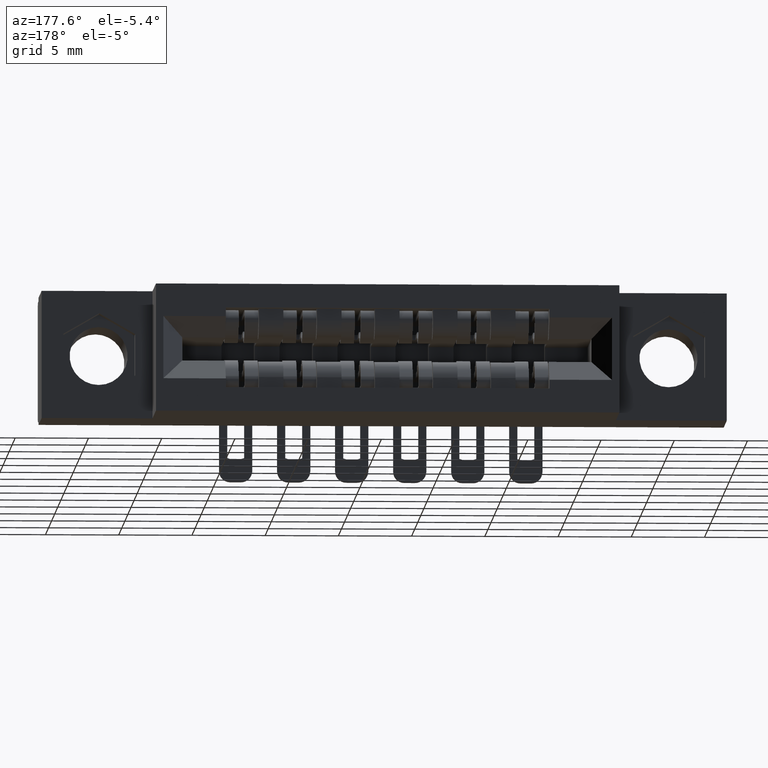
[diagram: clean part render]
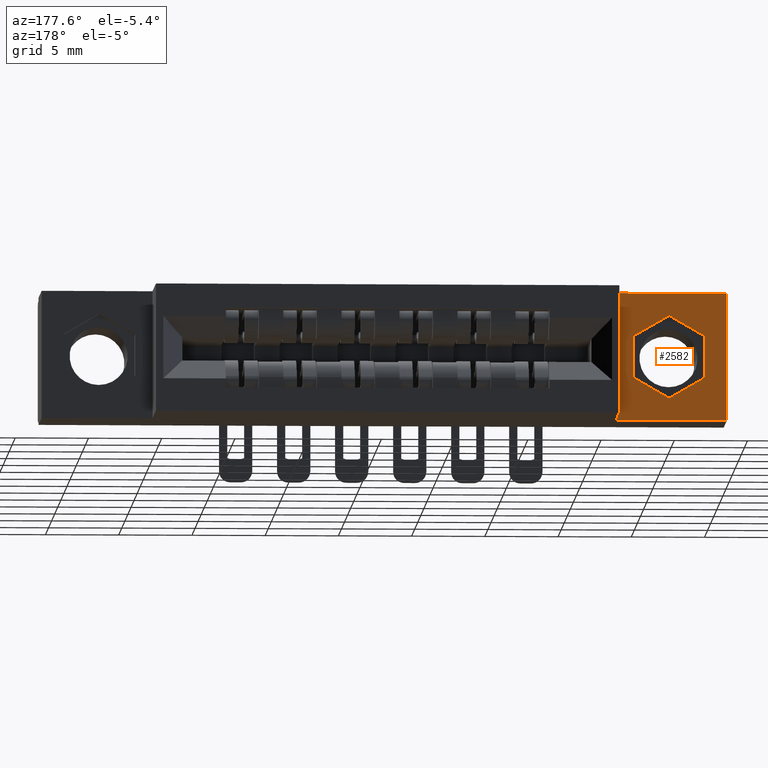
[diagram: same view with one face highlighted and labeled with its STEP entity id]
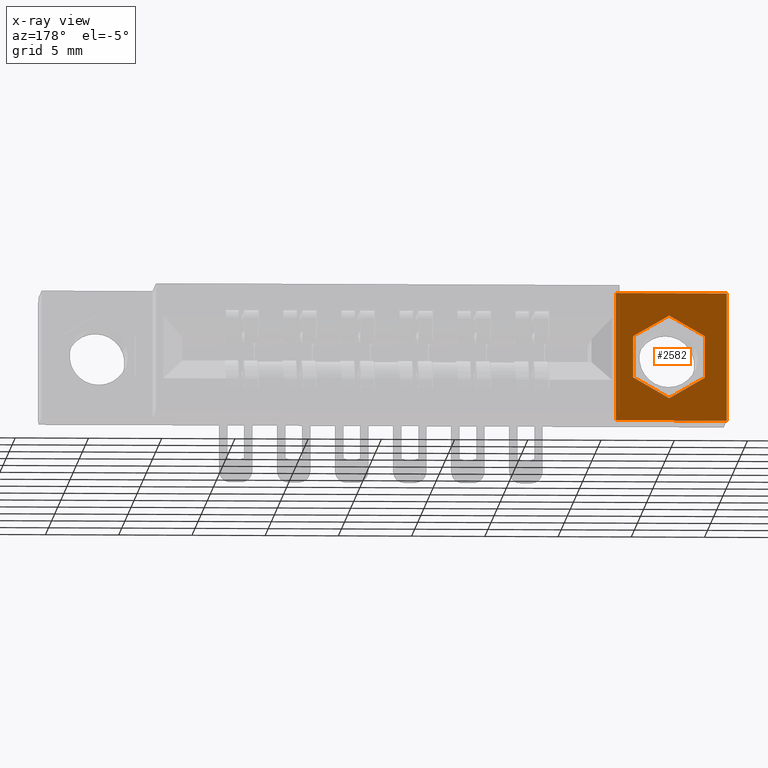
[diagram: x-ray of the same camera — body ghosted, the highlighted face saturated]
A machine part, auxiliary view. The second image highlights one B-rep face of the part: STEP entity #2582.
The next image is the same camera in x-ray: the body ghosted, the highlighted face saturated — about 4% of this face is hidden behind the body in this view.
In plain terms, the highlighted planar face has unit normal (0, 1, 0).
Its self-contained STEP definition (entity closure, byte-faithful):
#60 = VERTEX_POINT ( 'NONE', #4957 ) ;
#89 = CARTESIAN_POINT ( 'NONE',  ( 0.0000000000000000000, 0.2499999999999999700, 0.0000000000000000000 ) ) ;
#107 = VECTOR ( 'NONE', #7258, 39.37007874015748100 ) ;
#137 = CARTESIAN_POINT ( 'NONE',  ( 0.2515000000000002200, 0.2499999999999999700, -0.2272143009767989000 ) ) ;
#268 = VERTEX_POINT ( 'NONE', #8457 ) ;
#274 = VECTOR ( 'NONE', #9899, 39.37007874015748900 ) ;
#544 = CARTESIAN_POINT ( 'NONE',  ( 0.2979999999999999900, 0.2499999999999999700, -1.186721140104883800E-016 ) ) ;
#720 = FACE_OUTER_BOUND ( 'NONE', #3183, .T. ) ;
#873 = DIRECTION ( 'NONE',  ( 1.000000000000000000, -0.0000000000000000000, 0.0000000000000000000 ) ) ;
#962 = DIRECTION ( 'NONE',  ( -0.8660254037844388200, 0.0000000000000000000, -0.4999999999999998300 ) ) ;
#1281 = VERTEX_POINT ( 'NONE', #9709 ) ;
#1301 = CARTESIAN_POINT ( 'NONE',  ( 0.05850000000000048900, 0.2499999999999999700, -0.2272143009767988400 ) ) ;
#1415 = DIRECTION ( 'NONE',  ( -3.982285705049946100E-016, 0.0000000000000000000, -1.000000000000000000 ) ) ;
#1689 = AXIS2_PLACEMENT_3D ( 'NONE', #89, #1718, #4168 ) ;
#1718 = DIRECTION ( 'NONE',  ( 0.0000000000000000000, 1.000000000000000000, -0.0000000000000000000 ) ) ;
#2149 = VECTOR ( 'NONE', #5350, 39.37007874015748900 ) ;
#2197 = VECTOR ( 'NONE', #962, 39.37007874015748100 ) ;
#2279 = LINE ( 'NONE', #7552, #6264 ) ;
#2329 = EDGE_CURVE ( 'NONE', #268, #3106, #2455, .T. ) ;
#2455 = LINE ( 'NONE', #544, #7092 ) ;
#2490 = ORIENTED_EDGE ( 'NONE', *, *, #8911, .F. ) ;
#2582 = ADVANCED_FACE ( 'NONE', ( #5629, #720 ), #6793, .T. ) ;
#2767 = CARTESIAN_POINT ( 'NONE',  ( 0.2515000000000002200, 0.2499999999999999700, -0.1157856990232011600 ) ) ;
#3072 = DIRECTION ( 'NONE',  ( 0.8660254037844386000, 0.0000000000000000000, 0.4999999999999998900 ) ) ;
#3094 = CARTESIAN_POINT ( 'NONE',  ( 0.1550000000000003900, 0.2499999999999999700, -0.2829286019535977000 ) ) ;
#3106 = VERTEX_POINT ( 'NONE', #6151 ) ;
#3111 = VERTEX_POINT ( 'NONE', #2767 ) ;
#3183 = EDGE_LOOP ( 'NONE', ( #9513, #4982, #8399, #8709 ) ) ;
#3424 = EDGE_CURVE ( 'NONE', #8130, #8690, #8581, .T. ) ;
#3582 = LINE ( 'NONE', #5776, #5551 ) ;
#3649 = VECTOR ( 'NONE', #6927, 39.37007874015748100 ) ;
#4168 = DIRECTION ( 'NONE',  ( 0.0000000000000000000, 0.0000000000000000000, 1.000000000000000000 ) ) ;
#4457 = CARTESIAN_POINT ( 'NONE',  ( 0.0000000000000000000, 0.2499999999999999700, -0.3430000000000000300 ) ) ;
#4492 = CARTESIAN_POINT ( 'NONE',  ( 0.0000000000000000000, 0.2499999999999999700, -0.3430000000000000300 ) ) ;
#4517 = CARTESIAN_POINT ( 'NONE',  ( 0.0000000000000000000, 0.2499999999999999700, 0.0000000000000000000 ) ) ;
#4957 = CARTESIAN_POINT ( 'NONE',  ( 0.05850000000000048900, 0.2499999999999999700, -0.2272143009767988400 ) ) ;
#4982 = ORIENTED_EDGE ( 'NONE', *, *, #2329, .T. ) ;
#5202 = VECTOR ( 'NONE', #3072, 39.37007874015748900 ) ;
#5284 = CARTESIAN_POINT ( 'NONE',  ( 0.05850000000000047500, 0.2499999999999999700, -0.1157856990232012700 ) ) ;
#5350 = DIRECTION ( 'NONE',  ( -0.8660254037844386000, 0.0000000000000000000, 0.5000000000000000000 ) ) ;
#5386 = CARTESIAN_POINT ( 'NONE',  ( 0.0000000000000000000, 0.2499999999999999700, 0.0000000000000000000 ) ) ;
#5449 = CARTESIAN_POINT ( 'NONE',  ( 0.05850000000000047500, 0.2499999999999999700, -0.1157856990232012700 ) ) ;
#5551 = VECTOR ( 'NONE', #873, 39.37007874015748100 ) ;
#5629 = FACE_BOUND ( 'NONE', #7965, .T. ) ;
#5692 = CARTESIAN_POINT ( 'NONE',  ( 0.1550000000000004400, 0.2499999999999999700, -0.06007139804640241500 ) ) ;
#5751 = VERTEX_POINT ( 'NONE', #5692 ) ;
#5776 = CARTESIAN_POINT ( 'NONE',  ( 0.0000000000000000000, 0.2499999999999999700, 0.0000000000000000000 ) ) ;
#5795 = ORIENTED_EDGE ( 'NONE', *, *, #6571, .F. ) ;
#5832 = ORIENTED_EDGE ( 'NONE', *, *, #10882, .F. ) ;
#5881 = EDGE_CURVE ( 'NONE', #3106, #8130, #6523, .T. ) ;
#5907 = CARTESIAN_POINT ( 'NONE',  ( 0.1550000000000003900, 0.2499999999999999700, -0.2829286019535977000 ) ) ;
#5986 = ORIENTED_EDGE ( 'NONE', *, *, #9990, .F. ) ;
#6151 = CARTESIAN_POINT ( 'NONE',  ( 0.2979999999999998200, 0.2499999999999999700, -0.3430000000000000300 ) ) ;
#6234 = VERTEX_POINT ( 'NONE', #3094 ) ;
#6264 = VECTOR ( 'NONE', #7508, 39.37007874015748100 ) ;
#6387 = LINE ( 'NONE', #5907, #2149 ) ;
#6490 = ORIENTED_EDGE ( 'NONE', *, *, #6862, .F. ) ;
#6523 = LINE ( 'NONE', #4492, #3649 ) ;
#6571 = EDGE_CURVE ( 'NONE', #6234, #60, #6387, .T. ) ;
#6793 = PLANE ( 'NONE',  #1689 ) ;
#6862 = EDGE_CURVE ( 'NONE', #3111, #1281, #2279, .T. ) ;
#6927 = DIRECTION ( 'NONE',  ( -1.000000000000000000, 0.0000000000000000000, 0.0000000000000000000 ) ) ;
#7092 = VECTOR ( 'NONE', #1415, 39.37007874015748100 ) ;
#7146 = VECTOR ( 'NONE', #8638, 39.37007874015748100 ) ;
#7258 = DIRECTION ( 'NONE',  ( -1.532286115149485800E-016, 0.0000000000000000000, 1.000000000000000000 ) ) ;
#7508 = DIRECTION ( 'NONE',  ( 3.064572230298967200E-016, 0.0000000000000000000, -1.000000000000000000 ) ) ;
#7552 = CARTESIAN_POINT ( 'NONE',  ( 0.2515000000000002200, 0.2499999999999999700, -0.1157856990232011600 ) ) ;
#7554 = LINE ( 'NONE', #9122, #274 ) ;
#7608 = ORIENTED_EDGE ( 'NONE', *, *, #8783, .F. ) ;
#7965 = EDGE_LOOP ( 'NONE', ( #5832, #6490, #2490, #7608, #5986, #5795 ) ) ;
#8130 = VERTEX_POINT ( 'NONE', #4457 ) ;
#8399 = ORIENTED_EDGE ( 'NONE', *, *, #5881, .T. ) ;
#8457 = CARTESIAN_POINT ( 'NONE',  ( 0.2979999999999999900, 0.2499999999999999700, 0.0000000000000000000 ) ) ;
#8581 = LINE ( 'NONE', #4517, #7146 ) ;
#8638 = DIRECTION ( 'NONE',  ( 0.0000000000000000000, 0.0000000000000000000, 1.000000000000000000 ) ) ;
#8690 = VERTEX_POINT ( 'NONE', #5386 ) ;
#8709 = ORIENTED_EDGE ( 'NONE', *, *, #3424, .T. ) ;
#8783 = EDGE_CURVE ( 'NONE', #10401, #5751, #9820, .T. ) ;
#8911 = EDGE_CURVE ( 'NONE', #5751, #3111, #7554, .T. ) ;
#9122 = CARTESIAN_POINT ( 'NONE',  ( 0.1550000000000004400, 0.2499999999999999700, -0.06007139804640241500 ) ) ;
#9513 = ORIENTED_EDGE ( 'NONE', *, *, #9632, .T. ) ;
#9632 = EDGE_CURVE ( 'NONE', #8690, #268, #3582, .T. ) ;
#9709 = CARTESIAN_POINT ( 'NONE',  ( 0.2515000000000002200, 0.2499999999999999700, -0.2272143009767989000 ) ) ;
#9820 = LINE ( 'NONE', #5449, #5202 ) ;
#9899 = DIRECTION ( 'NONE',  ( 0.8660254037844386000, 0.0000000000000000000, -0.4999999999999998300 ) ) ;
#9990 = EDGE_CURVE ( 'NONE', #60, #10401, #10440, .T. ) ;
#10282 = LINE ( 'NONE', #137, #2197 ) ;
#10401 = VERTEX_POINT ( 'NONE', #5284 ) ;
#10440 = LINE ( 'NONE', #1301, #107 ) ;
#10882 = EDGE_CURVE ( 'NONE', #1281, #6234, #10282, .T. ) ;